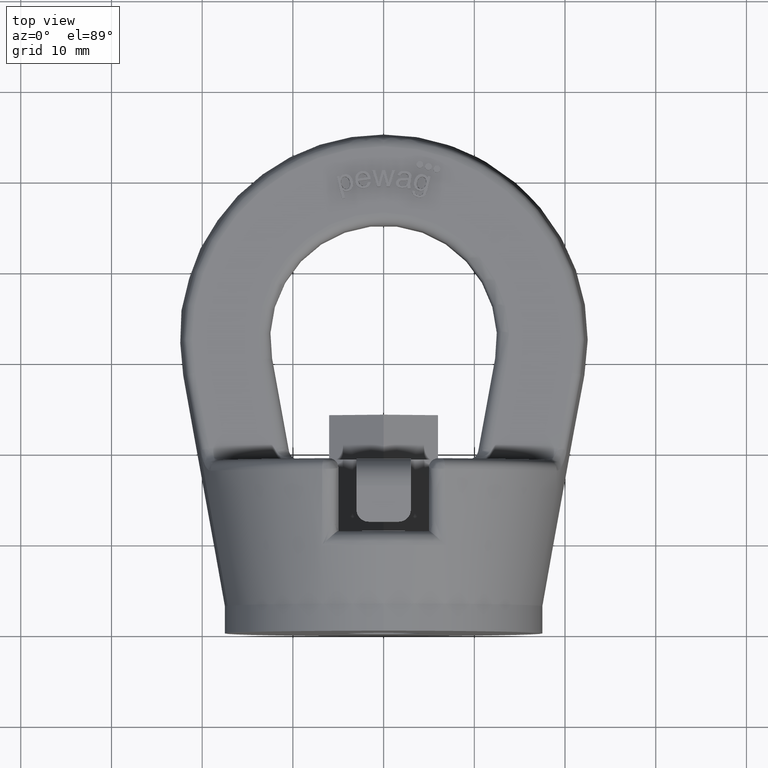
[diagram: clean part render]
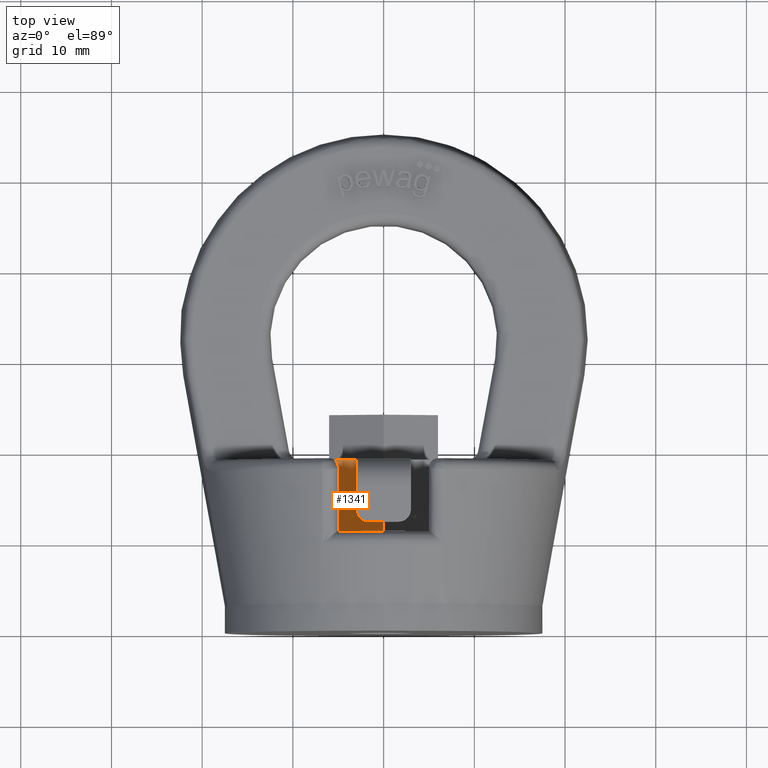
[diagram: same view with one face highlighted and labeled with its STEP entity id]
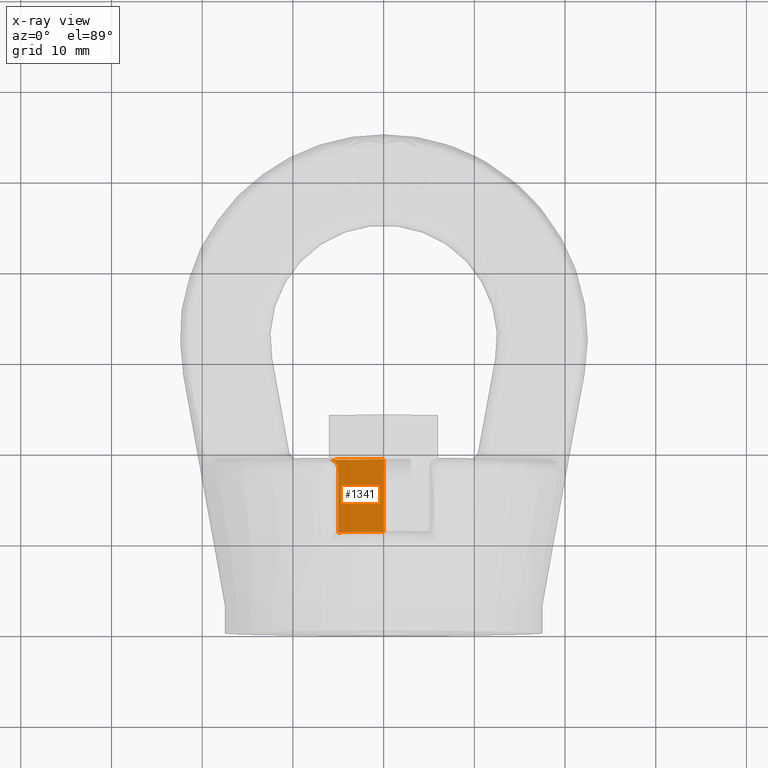
[diagram: x-ray of the same camera — body ghosted, the highlighted face saturated]
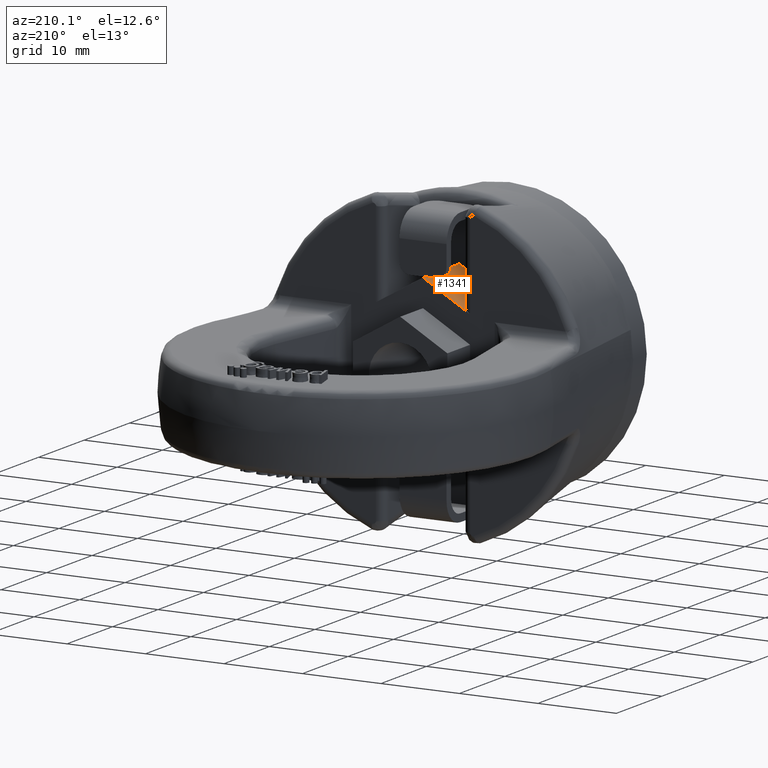
[diagram: same view with one face highlighted and labeled with its STEP entity id]
A machine part, top view. The second image highlights one B-rep face of the part: STEP entity #1341.
The next image is the same camera in x-ray: the body ghosted, the highlighted face saturated — about 1% of this face is hidden behind the body in this view.
A second angle (auxiliary view) of the same face is appended — the face is thin or edge-on in the first view.
In plain terms, the highlighted planar face has unit normal (-0.5, 0, 0.866).
Its self-contained STEP definition (entity closure, byte-faithful):
#1053=ELLIPSE('',#5150,1.15470053837925,1.);
#1117=FACE_OUTER_BOUND('',#1859,.T.);
#1341=ADVANCED_FACE('',(#1117),#1577,.T.);
#1577=PLANE('',#5151);
#1859=EDGE_LOOP('',(#2869,#2870,#2871,#2872,#2873));
#2131=LINE('',#6530,#2401);
#2136=LINE('',#6561,#2406);
#2154=LINE('',#6835,#2424);
#2178=LINE('',#6917,#2448);
#2401=VECTOR('',#5416,1.);
#2406=VECTOR('',#5425,1.);
#2424=VECTOR('',#5491,1.);
#2448=VECTOR('',#5545,1.);
#2869=ORIENTED_EDGE('',*,*,#4370,.F.);
#2870=ORIENTED_EDGE('',*,*,#4403,.T.);
#2871=ORIENTED_EDGE('',*,*,#4309,.T.);
#2872=ORIENTED_EDGE('',*,*,#4318,.T.);
#2873=ORIENTED_EDGE('',*,*,#4401,.T.);
#3925=VERTEX_POINT('',#6531);
#3926=VERTEX_POINT('',#6532);
#3933=VERTEX_POINT('',#6560);
#3981=VERTEX_POINT('',#6834);
#3982=VERTEX_POINT('',#6836);
#4309=EDGE_CURVE('',#3925,#3926,#2131,.T.);
#4318=EDGE_CURVE('',#3926,#3933,#2136,.T.);
#4370=EDGE_CURVE('',#3981,#3982,#2154,.T.);
#4401=EDGE_CURVE('',#3933,#3982,#2178,.T.);
#4403=EDGE_CURVE('',#3981,#3925,#1053,.T.);
#5150=AXIS2_PLACEMENT_3D('',#6920,#5550,#5551);
#5151=AXIS2_PLACEMENT_3D('',#6921,#5552,#5553);
#5416=DIRECTION('',(0.,-1.,0.));
#5425=DIRECTION('',(0.86602540378444,3.00462919747432E-16,0.499999999999998));
#5491=DIRECTION('',(0.86602540378444,0.,0.499999999999998));
#5545=DIRECTION('',(0.,1.,0.));
#5550=DIRECTION('',(0.499999999999998,0.,-0.86602540378444));
#5551=DIRECTION('',(0.86602540378444,0.,0.499999999999998));
#5552=DIRECTION('',(-0.499999999999998,0.,0.86602540378444));
#5553=DIRECTION('',(0.86602540378444,0.,0.499999999999998));
#6530=CARTESIAN_POINT('',(-5.,19.,7.50555349946512));
#6531=CARTESIAN_POINT('',(-5.,18.,7.50555349946512));
#6532=CARTESIAN_POINT('',(-5.,11.,7.50555349946513));
#6560=CARTESIAN_POINT('',(4.33680868994202E-16,11.,10.3923048454132));
#6561=CARTESIAN_POINT('',(2.46706437183242,11.,11.8166651245988));
#6834=CARTESIAN_POINT('',(-6.,19.,6.9282032302755));
#6835=CARTESIAN_POINT('',(-4.49999999999998,19.,7.79422863405995));
#6836=CARTESIAN_POINT('',(3.5102176233347E-16,19.,10.3923048454132));
#6917=CARTESIAN_POINT('',(0.,0.899999999999998,10.3923048454132));
#6920=CARTESIAN_POINT('',(-6.,18.,6.9282032302755));
#6921=CARTESIAN_POINT('',(-7.49999999999999,0.899999999999998,6.06217782649107));